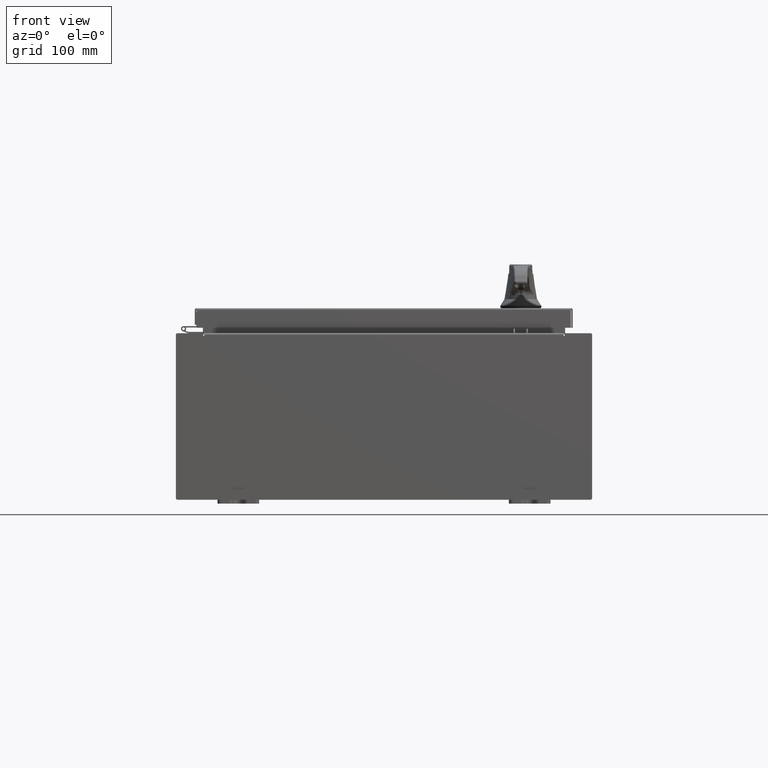
[diagram: clean part render]
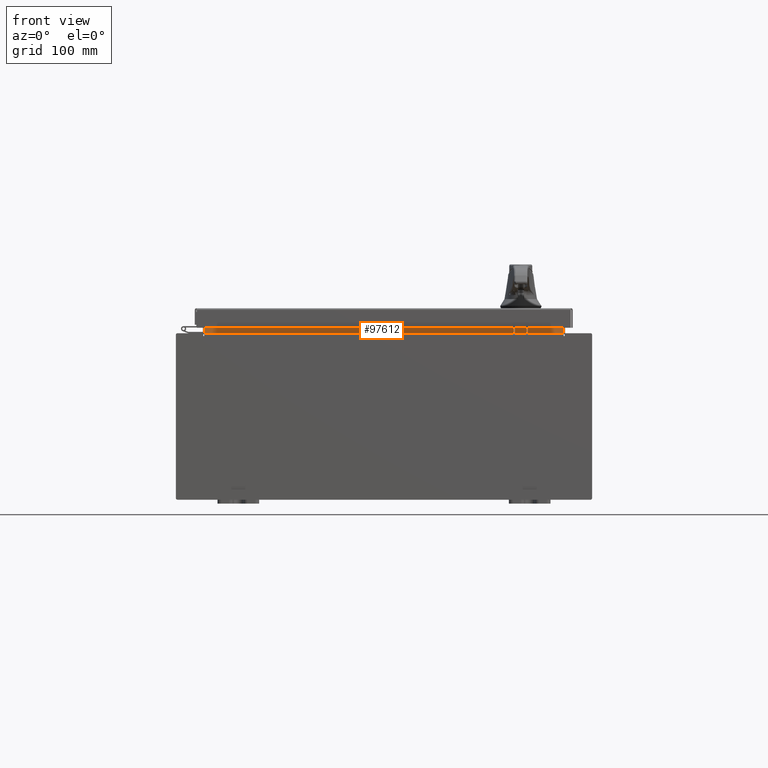
[diagram: same view with one face highlighted and labeled with its STEP entity id]
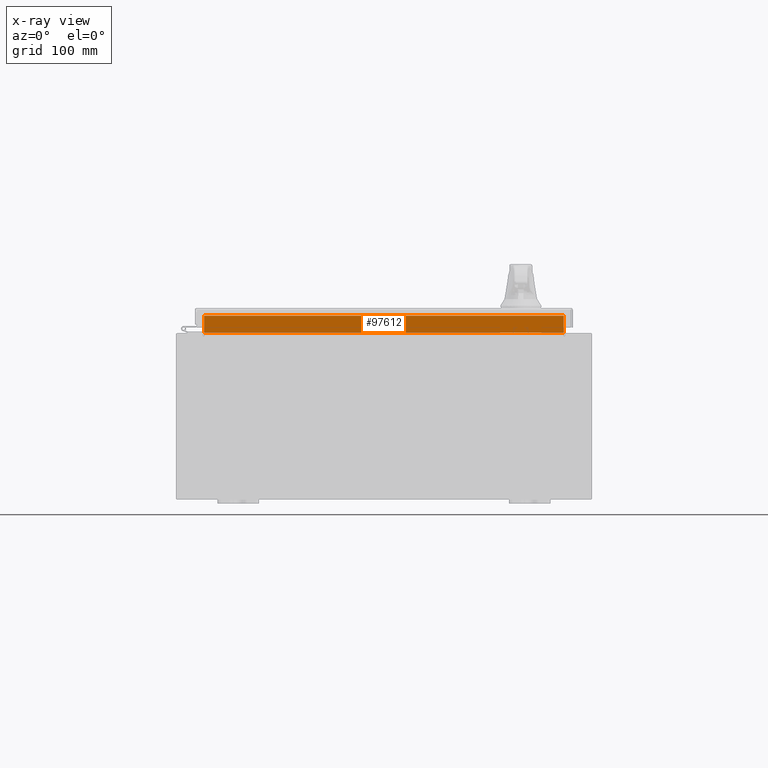
[diagram: x-ray of the same camera — body ghosted, the highlighted face saturated]
A machine part, front view. The second image highlights one B-rep face of the part: STEP entity #97612.
The next image is the same camera in x-ray: the body ghosted, the highlighted face saturated — about 0% of this face is hidden behind the body in this view.
In plain terms, the highlighted planar face has unit normal (0, -1, 0).
Its self-contained STEP definition (entity closure, byte-faithful):
#8180 = DIRECTION ( 'NONE',  ( 0.0000000000000000000, -0.0000000000000000000, 1.000000000000000000 ) ) ;
#15440 = CARTESIAN_POINT ( 'NONE',  ( -8.637200000000000000, -1.300299999999999300, 4.837600000000003700 ) ) ;
#16824 = DIRECTION ( 'NONE',  ( -0.0000000000000000000, -0.0000000000000000000, -1.000000000000000000 ) ) ;
#19073 = AXIS2_PLACEMENT_3D ( 'NONE', #42030, #94503, #8180 ) ;
#19677 = DIRECTION ( 'NONE',  ( 1.000000000000000000, 0.0000000000000000000, -3.162886113166609200E-017 ) ) ;
#22176 = LINE ( 'NONE', #46797, #109928 ) ;
#23926 = VERTEX_POINT ( 'NONE', #15440 ) ;
#25082 = CARTESIAN_POINT ( 'NONE',  ( 8.637200000000000000, -1.300299999999999300, 4.837600000000003700 ) ) ;
#27411 = VERTEX_POINT ( 'NONE', #61068 ) ;
#28169 = VECTOR ( 'NONE', #19677, 39.37007874015748100 ) ;
#30248 = EDGE_CURVE ( 'NONE', #83367, #27411, #22176, .T. ) ;
#32067 = ORIENTED_EDGE ( 'NONE', *, *, #93492, .F. ) ;
#37006 = CARTESIAN_POINT ( 'NONE',  ( -8.637200000000000000, -1.300299999999999800, 4.013000000000003500 ) ) ;
#42030 = CARTESIAN_POINT ( 'NONE',  ( 0.0000000000000000000, -1.300299999999999800, 0.0000000000000000000 ) ) ;
#45431 = LINE ( 'NONE', #113017, #83884 ) ;
#46797 = CARTESIAN_POINT ( 'NONE',  ( 8.637200000000000000, -1.300299999999999800, 4.925300000000004500 ) ) ;
#55640 = DIRECTION ( 'NONE',  ( -0.0000000000000000000, -0.0000000000000000000, 1.000000000000000000 ) ) ;
#55767 = ORIENTED_EDGE ( 'NONE', *, *, #84347, .F. ) ;
#56813 = ORIENTED_EDGE ( 'NONE', *, *, #70039, .F. ) ;
#60733 = PLANE ( 'NONE',  #19073 ) ;
#61068 = CARTESIAN_POINT ( 'NONE',  ( 8.637200000000000000, -1.300299999999999800, 4.837600000000003700 ) ) ;
#64496 = VECTOR ( 'NONE', #95247, 39.37007874015748100 ) ;
#70039 = EDGE_CURVE ( 'NONE', #27411, #23926, #90575, .T. ) ;
#83367 = VERTEX_POINT ( 'NONE', #106179 ) ;
#83884 = VECTOR ( 'NONE', #16824, 39.37007874015748100 ) ;
#84347 = EDGE_CURVE ( 'NONE', #107447, #83367, #92675, .T. ) ;
#85314 = CARTESIAN_POINT ( 'NONE',  ( -8.637200000000000000, -1.300299999999999800, 4.013000000000003500 ) ) ;
#90575 = LINE ( 'NONE', #25082, #64496 ) ;
#92675 = LINE ( 'NONE', #37006, #28169 ) ;
#93492 = EDGE_CURVE ( 'NONE', #23926, #107447, #45431, .T. ) ;
#93618 = ORIENTED_EDGE ( 'NONE', *, *, #30248, .F. ) ;
#94503 = DIRECTION ( 'NONE',  ( 0.0000000000000000000, 1.000000000000000000, 0.0000000000000000000 ) ) ;
#95247 = DIRECTION ( 'NONE',  ( -1.000000000000000000, -0.0000000000000000000, -0.0000000000000000000 ) ) ;
#97612 = ADVANCED_FACE ( 'NONE', ( #107995 ), #60733, .T. ) ;
#106179 = CARTESIAN_POINT ( 'NONE',  ( 8.637199999999996400, -1.300299999999999800, 4.013000000000003500 ) ) ;
#107447 = VERTEX_POINT ( 'NONE', #85314 ) ;
#107995 = FACE_OUTER_BOUND ( 'NONE', #109125, .T. ) ;
#109125 = EDGE_LOOP ( 'NONE', ( #32067, #56813, #93618, #55767 ) ) ;
#109928 = VECTOR ( 'NONE', #55640, 39.37007874015748100 ) ;
#113017 = CARTESIAN_POINT ( 'NONE',  ( -8.637200000000000000, -1.300299999999999800, 4.000000000000004400 ) ) ;